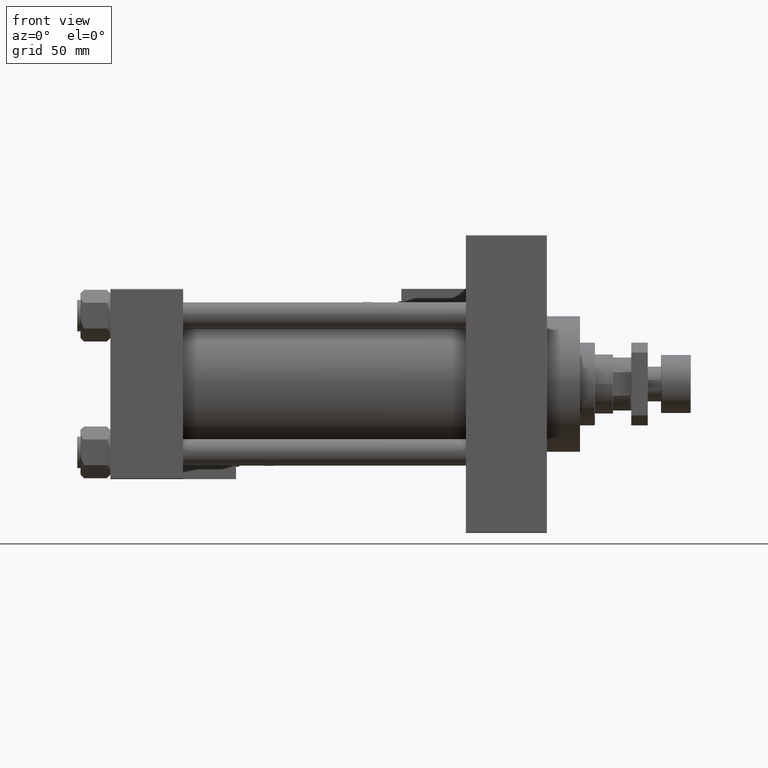
[diagram: clean part render]
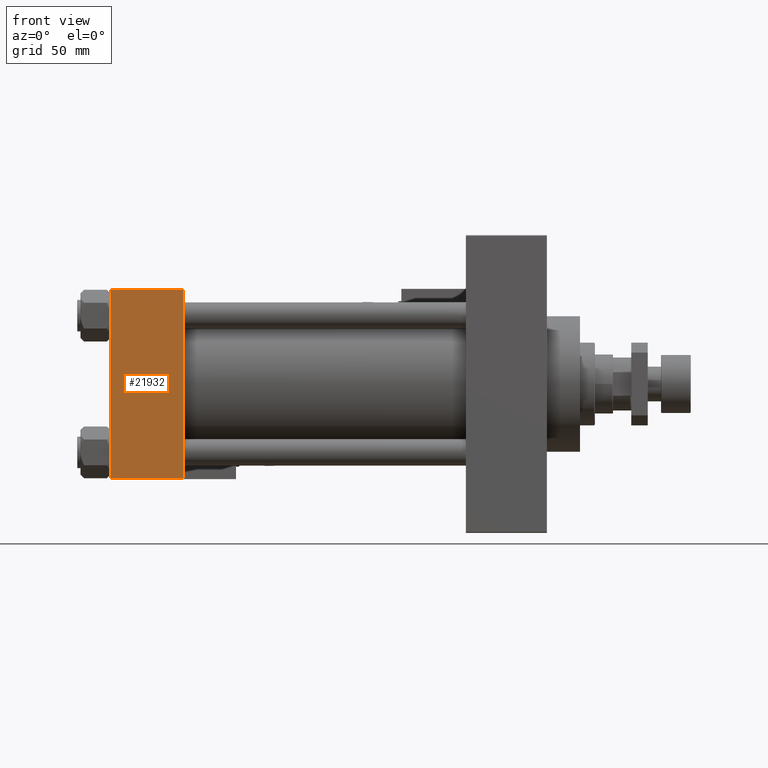
[diagram: same view with one face highlighted and labeled with its STEP entity id]
A machine part, front view. The second image highlights one B-rep face of the part: STEP entity #21932.
In plain terms, the highlighted planar face has unit normal (0, 1, 0).
Its self-contained STEP definition (entity closure, byte-faithful):
#133 = VERTEX_POINT ( 'NONE', #17766 ) ;
#693 = EDGE_CURVE ( 'NONE', #14547, #52519, #53427, .T. ) ;
#2201 = EDGE_CURVE ( 'NONE', #21780, #133, #51598, .T. ) ;
#4404 = CARTESIAN_POINT ( 'NONE',  ( 44.00000000000000000, -57.50000000000000000, 56.99999999999997868 ) ) ;
#5210 = CARTESIAN_POINT ( 'NONE',  ( 0.000000000000000000, -57.50000000000000000, 56.99999999999997868 ) ) ;
#12835 = ORIENTED_EDGE ( 'NONE', *, *, #46897, .T. ) ;
#13824 = ORIENTED_EDGE ( 'NONE', *, *, #53744, .F. ) ;
#14547 = VERTEX_POINT ( 'NONE', #51735 ) ;
#15558 = LINE ( 'NONE', #23155, #38684 ) ;
#15915 = CARTESIAN_POINT ( 'NONE',  ( 44.00000000000000000, -57.50000000000000000, 57.49999999999999289 ) ) ;
#17766 = CARTESIAN_POINT ( 'NONE',  ( 44.00000000000000000, -57.49999999999999289, -57.00000000000003553 ) ) ;
#21780 = VERTEX_POINT ( 'NONE', #38531 ) ;
#21932 = ADVANCED_FACE ( 'NONE', ( #23795 ), #40931, .F. ) ;
#22983 = DIRECTION ( 'NONE',  ( 1.000000000000000000, 0.000000000000000000, 0.000000000000000000 ) ) ;
#23155 = CARTESIAN_POINT ( 'NONE',  ( 44.00000000000000000, -57.50000000000000000, 57.49999999999999289 ) ) ;
#23795 = FACE_OUTER_BOUND ( 'NONE', #32804, .T. ) ;
#25734 = VECTOR ( 'NONE', #33517, 1000.000000000000000 ) ;
#25815 = VECTOR ( 'NONE', #22983, 1000.000000000000000 ) ;
#26369 = VECTOR ( 'NONE', #40600, 1000.000000000000000 ) ;
#27880 = DIRECTION ( 'NONE',  ( -0.000000000000000000, 1.000000000000000000, 6.033820786006285224E-17 ) ) ;
#30889 = CARTESIAN_POINT ( 'NONE',  ( 44.00000000000000000, -57.49999999999999289, -57.00000000000003553 ) ) ;
#32148 = ORIENTED_EDGE ( 'NONE', *, *, #693, .T. ) ;
#32426 = LINE ( 'NONE', #37324, #26369 ) ;
#32804 = EDGE_LOOP ( 'NONE', ( #12835, #48267, #13824, #32148 ) ) ;
#33517 = DIRECTION ( 'NONE',  ( -1.000000000000000000, 0.000000000000000000, 0.000000000000000000 ) ) ;
#37324 = CARTESIAN_POINT ( 'NONE',  ( 0.000000000000000000, -57.50000000000000000, 57.49999999999999289 ) ) ;
#38531 = CARTESIAN_POINT ( 'NONE',  ( 0.000000000000000000, -57.49999999999999289, -57.00000000000003553 ) ) ;
#38684 = VECTOR ( 'NONE', #48755, 1000.000000000000000 ) ;
#40398 = DIRECTION ( 'NONE',  ( 0.000000000000000000, -6.033820786006285224E-17, 1.000000000000000000 ) ) ;
#40600 = DIRECTION ( 'NONE',  ( 0.000000000000000000, 6.033820786006285224E-17, -1.000000000000000000 ) ) ;
#40931 = PLANE ( 'NONE',  #44644 ) ;
#44644 = AXIS2_PLACEMENT_3D ( 'NONE', #15915, #27880, #40398 ) ;
#46897 = EDGE_CURVE ( 'NONE', #52519, #21780, #32426, .T. ) ;
#48267 = ORIENTED_EDGE ( 'NONE', *, *, #2201, .T. ) ;
#48755 = DIRECTION ( 'NONE',  ( 0.000000000000000000, 6.033820786006285224E-17, -1.000000000000000000 ) ) ;
#51598 = LINE ( 'NONE', #30889, #25815 ) ;
#51735 = CARTESIAN_POINT ( 'NONE',  ( 44.00000000000000000, -57.50000000000000000, 56.99999999999997868 ) ) ;
#52519 = VERTEX_POINT ( 'NONE', #5210 ) ;
#53427 = LINE ( 'NONE', #4404, #25734 ) ;
#53744 = EDGE_CURVE ( 'NONE', #14547, #133, #15558, .T. ) ;